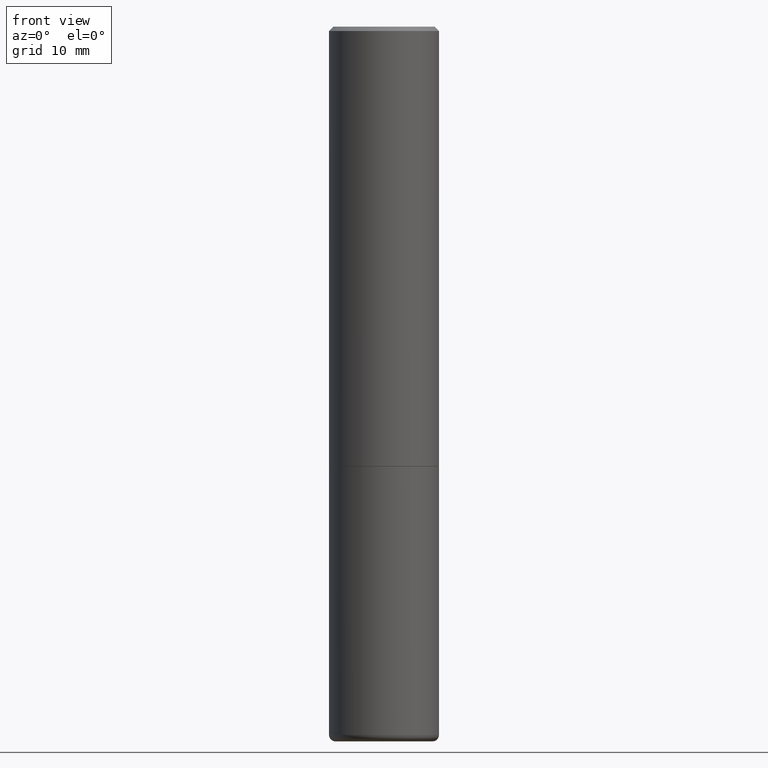
[diagram: clean part render]
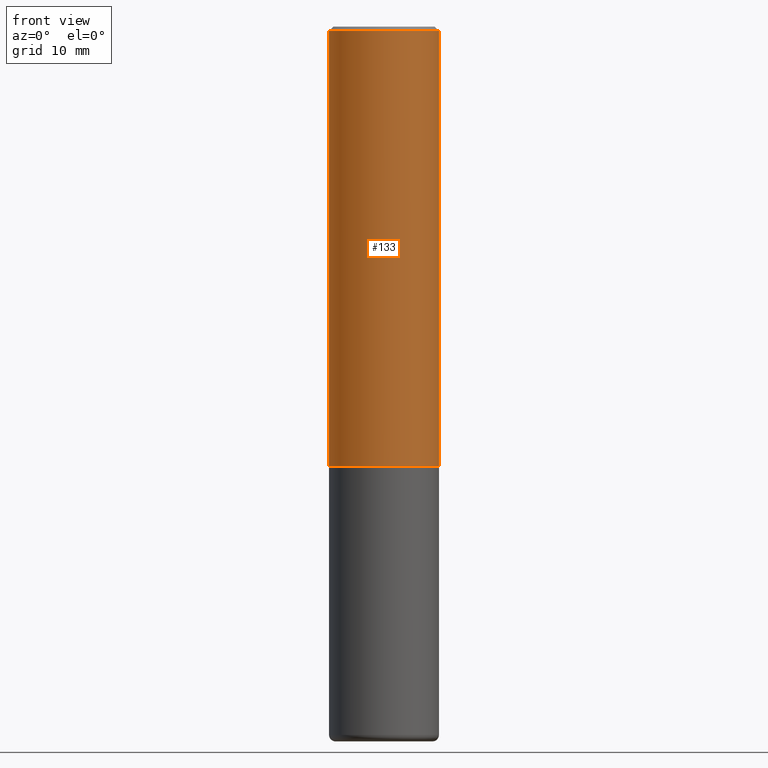
[diagram: same view with one face highlighted and labeled with its STEP entity id]
A machine part, front view. The second image highlights one B-rep face of the part: STEP entity #133.
In plain terms, the highlighted cylindrical surface (partial cylindrical patch) has radius 6.35 mm, axis along (-0, 0, 1).
Its self-contained STEP definition (entity closure, byte-faithful):
#41 = CARTESIAN_POINT ( 'NONE',  ( 4.888492143564087591E-29, -6.979471196347447369E-15, -1.998999999999999888 ) ) ;
#42 = DIRECTION ( 'NONE',  ( 1.000000000000000000, -6.982962677686266711E-15, 4.876176775795935232E-29 ) ) ;
#49 = DIRECTION ( 'NONE',  ( -2.445468806185136877E-29, 3.491481338843145188E-15, 1.000000000000000000 ) ) ;
#102 = EDGE_CURVE ( 'NONE', #247, #166, #323, .T. ) ;
#104 = DIRECTION ( 'NONE',  ( -2.445468806185136597E-29, 3.491481338843145583E-15, 1.000000000000000000 ) ) ;
#105 = ORIENTED_EDGE ( 'NONE', *, *, #126, .T. ) ;
#123 = AXIS2_PLACEMENT_3D ( 'NONE', #384, #417, #42 ) ;
#126 = EDGE_CURVE ( 'NONE', #166, #287, #266, .T. ) ;
#133 = ADVANCED_FACE ( 'NONE', ( #230 ), #413, .T. ) ;
#142 = CIRCLE ( 'NONE', #482, 0.2499999999999994171 ) ;
#161 = CARTESIAN_POINT ( 'NONE',  ( 0.2499999999999996669, -8.725211865769010891E-15, -1.998999999999999888 ) ) ;
#166 = VERTEX_POINT ( 'NONE', #161 ) ;
#168 = CARTESIAN_POINT ( 'NONE',  ( -0.2499999999999994171, 1.675911042644699238E-15, -0.02000000000000012879 ) ) ;
#174 = AXIS2_PLACEMENT_3D ( 'NONE', #41, #457, #420 ) ;
#230 = FACE_OUTER_BOUND ( 'NONE', #293, .T. ) ;
#234 = LINE ( 'NONE', #387, #315 ) ;
#247 = VERTEX_POINT ( 'NONE', #426 ) ;
#252 = VERTEX_POINT ( 'NONE', #168 ) ;
#262 = DIRECTION ( 'NONE',  ( -2.445468806185136877E-29, 3.491481338843145188E-15, 1.000000000000000000 ) ) ;
#264 = CARTESIAN_POINT ( 'NONE',  ( 0.2499999999999995282, -1.745740669421563325E-15, 1.219044193948981566E-29 ) ) ;
#266 = LINE ( 'NONE', #264, #488 ) ;
#284 = ORIENTED_EDGE ( 'NONE', *, *, #102, .T. ) ;
#287 = VERTEX_POINT ( 'NONE', #396 ) ;
#293 = EDGE_LOOP ( 'NONE', ( #358, #284, #105, #487 ) ) ;
#298 = CARTESIAN_POINT ( 'NONE',  ( 4.890937612370304688E-31, -6.982962677686335982E-17, -0.02000000000000012879 ) ) ;
#315 = VECTOR ( 'NONE', #49, 39.37007874015748143 ) ;
#323 = CIRCLE ( 'NONE', #174, 0.2499999999999996669 ) ;
#358 = ORIENTED_EDGE ( 'NONE', *, *, #394, .F. ) ;
#384 = CARTESIAN_POINT ( 'NONE',  ( 0.000000000000000000, 0.000000000000000000, 0.000000000000000000 ) ) ;
#387 = CARTESIAN_POINT ( 'NONE',  ( -0.2499999999999995282, 1.776356839400247112E-15, -1.229733772563724063E-29 ) ) ;
#394 = EDGE_CURVE ( 'NONE', #247, #252, #234, .T. ) ;
#396 = CARTESIAN_POINT ( 'NONE',  ( 0.2499999999999994171, -1.784954126219742244E-15, -0.02000000000000012879 ) ) ;
#404 = DIRECTION ( 'NONE',  ( 1.000000000000000000, -6.982962677686266711E-15, 0.000000000000000000 ) ) ;
#413 = CYLINDRICAL_SURFACE ( 'NONE', #123, 0.2499999999999995282 ) ;
#417 = DIRECTION ( 'NONE',  ( -2.445468806185136597E-29, 3.491481338843145583E-15, 1.000000000000000000 ) ) ;
#420 = DIRECTION ( 'NONE',  ( 1.000000000000000000, -6.982962677686264344E-15, 0.000000000000000000 ) ) ;
#426 = CARTESIAN_POINT ( 'NONE',  ( -0.2499999999999996114, -1.748293572161906447E-15, -1.998999999999999888 ) ) ;
#457 = DIRECTION ( 'NONE',  ( -2.445468806185136597E-29, 3.491481338843145583E-15, 1.000000000000000000 ) ) ;
#475 = EDGE_CURVE ( 'NONE', #252, #287, #142, .T. ) ;
#482 = AXIS2_PLACEMENT_3D ( 'NONE', #298, #104, #404 ) ;
#487 = ORIENTED_EDGE ( 'NONE', *, *, #475, .F. ) ;
#488 = VECTOR ( 'NONE', #262, 39.37007874015748143 ) ;